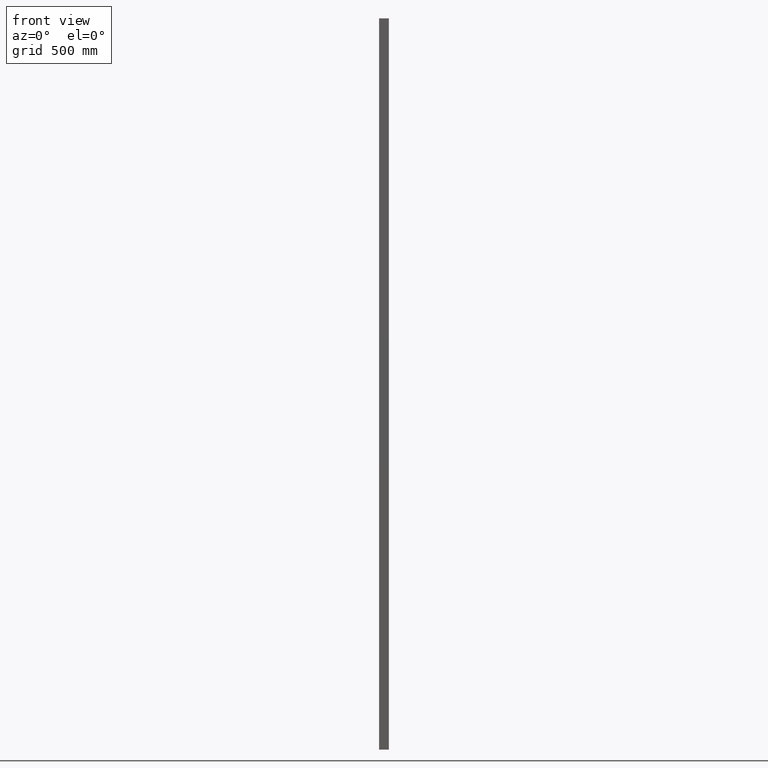
[diagram: clean part render]
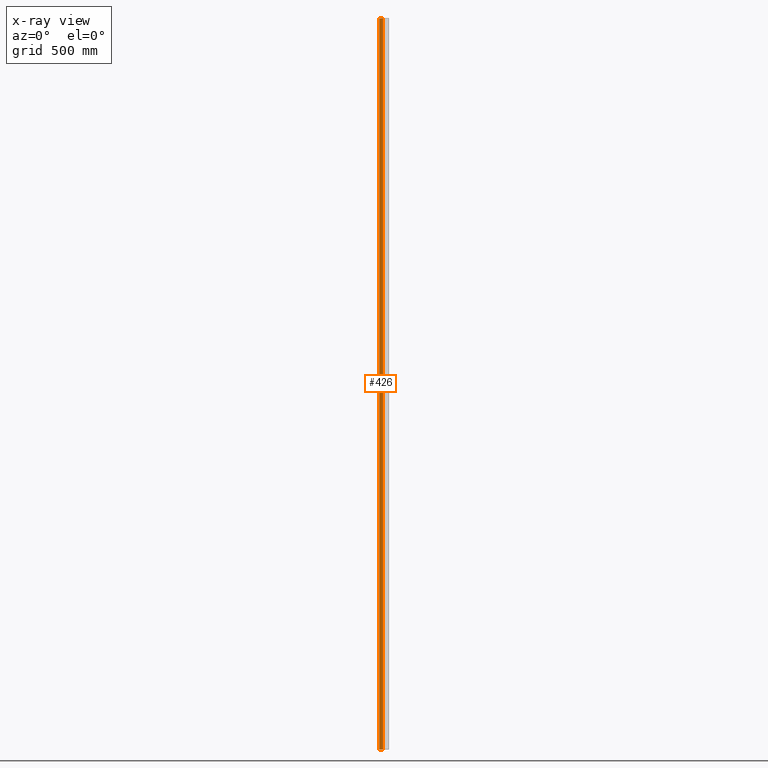
[diagram: x-ray — body ghosted, one internal face saturated and labeled with its STEP entity id]
A machine part, front view, then the same camera in x-ray: the body is ghosted and one INTERNAL B-rep face — a face not visible from any outside direction — is saturated and labeled: STEP entity #426.
In plain terms, the highlighted planar face has unit normal (0, -1, 0).
Its self-contained STEP definition (entity closure, byte-faithful):
#40=FACE_OUTER_BOUND('',#62,.T.);
#62=EDGE_LOOP('',(#327,#328,#329,#330));
#106=LINE('',#683,#158);
#107=LINE('',#686,#159);
#108=LINE('',#688,#160);
#109=LINE('',#689,#161);
#158=VECTOR('',#559,10.);
#159=VECTOR('',#562,10.);
#160=VECTOR('',#563,10.);
#161=VECTOR('',#564,10.);
#201=VERTEX_POINT('',#679);
#202=VERTEX_POINT('',#681);
#203=VERTEX_POINT('',#685);
#204=VERTEX_POINT('',#687);
#254=EDGE_CURVE('',#201,#202,#106,.T.);
#255=EDGE_CURVE('',#203,#201,#107,.T.);
#256=EDGE_CURVE('',#204,#202,#108,.T.);
#257=EDGE_CURVE('',#203,#204,#109,.T.);
#327=ORIENTED_EDGE('',*,*,#255,.T.);
#328=ORIENTED_EDGE('',*,*,#254,.T.);
#329=ORIENTED_EDGE('',*,*,#256,.F.);
#330=ORIENTED_EDGE('',*,*,#257,.F.);
#406=PLANE('',#475);
#426=ADVANCED_FACE('',(#40),#406,.T.);
#475=AXIS2_PLACEMENT_3D('',#684,#560,#561);
#559=DIRECTION('',(0.,0.,1.));
#560=DIRECTION('center_axis',(0.,-1.,0.));
#561=DIRECTION('ref_axis',(1.,0.,0.));
#562=DIRECTION('',(1.,0.,0.));
#563=DIRECTION('',(1.,0.,0.));
#564=DIRECTION('',(0.,0.,1.));
#679=CARTESIAN_POINT('',(-4.,2.35,0.));
#681=CARTESIAN_POINT('',(-4.,2.35,3000.));
#683=CARTESIAN_POINT('',(-4.,2.35,0.));
#684=CARTESIAN_POINT('Origin',(-19.,2.35,0.));
#685=CARTESIAN_POINT('',(-19.,2.35,0.));
#686=CARTESIAN_POINT('',(-19.,2.35,0.));
#687=CARTESIAN_POINT('',(-19.,2.35,3000.));
#688=CARTESIAN_POINT('',(-19.,2.35,3000.));
#689=CARTESIAN_POINT('',(-19.,2.35,0.));